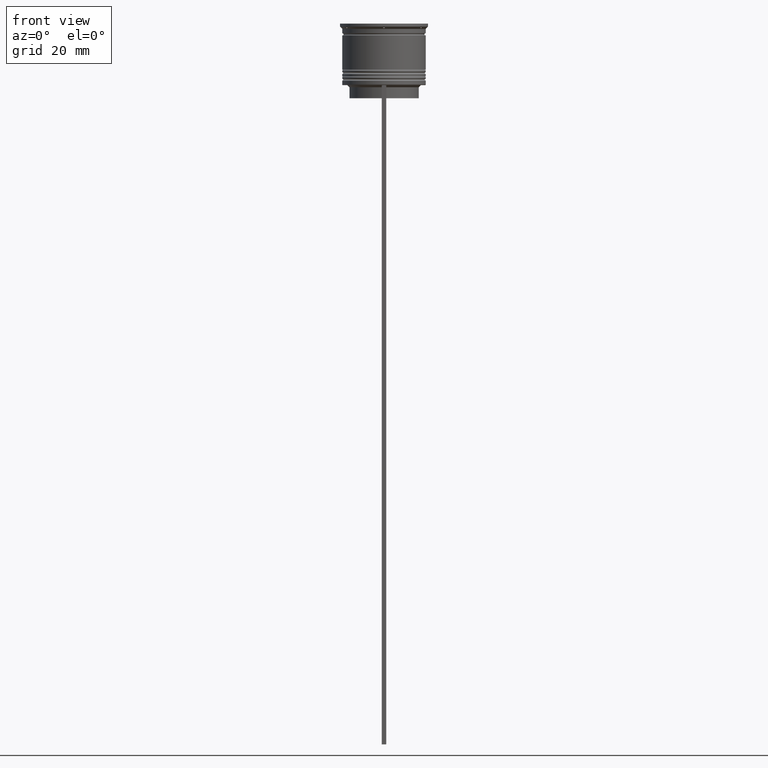
[diagram: clean part render]
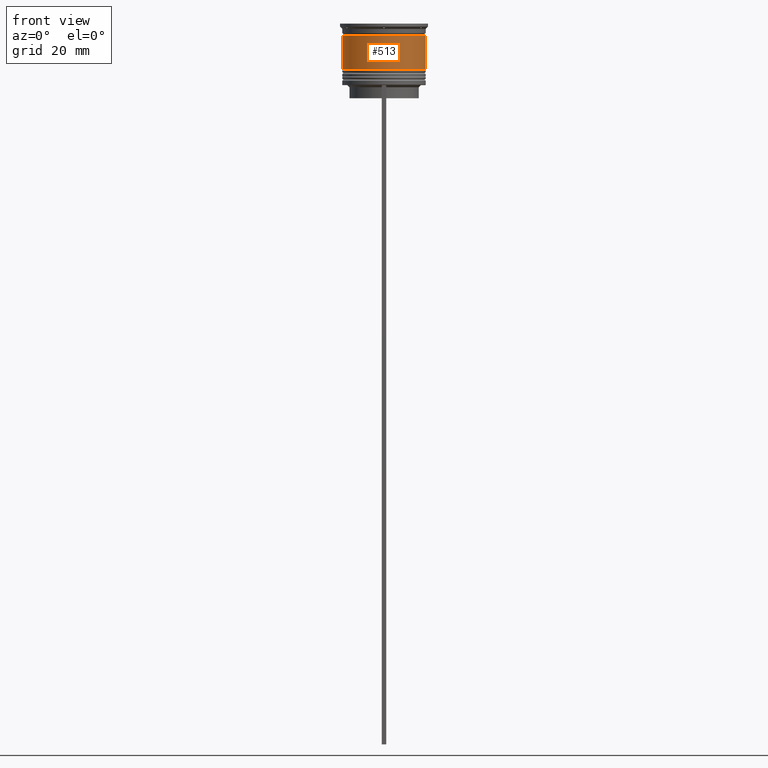
[diagram: same view with one face highlighted and labeled with its STEP entity id]
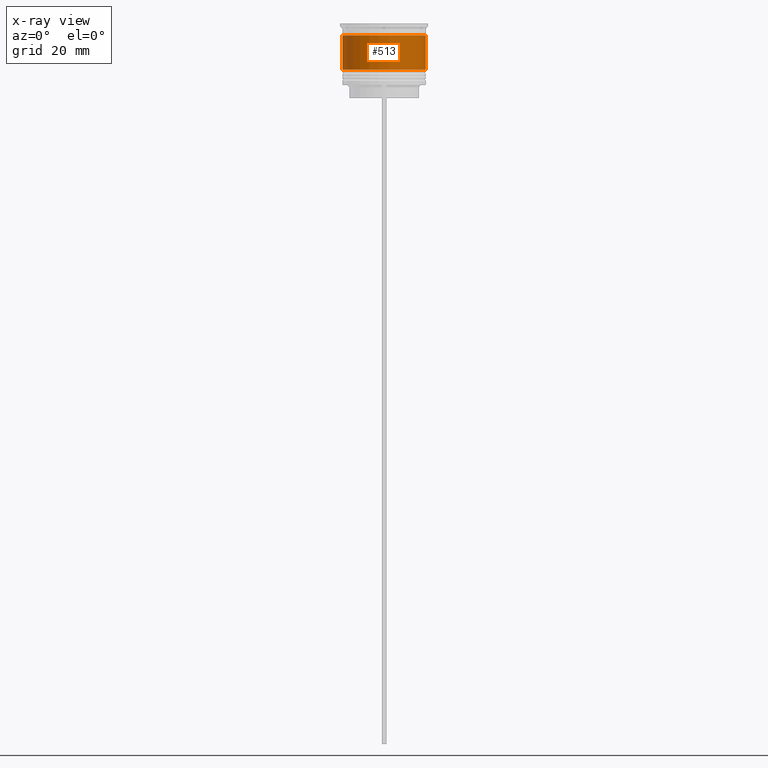
[diagram: x-ray of the same camera — body ghosted, the highlighted face saturated]
A machine part, front view. The second image highlights one B-rep face of the part: STEP entity #513.
The next image is the same camera in x-ray: the body ghosted, the highlighted face saturated — about 0% of this face is hidden behind the body in this view.
In plain terms, the highlighted cylindrical surface (partial cylindrical patch) has radius 9.5 mm, axis along (-0, -0, 1).
Its self-contained STEP definition (entity closure, byte-faithful):
#2 = CIRCLE ( 'NONE', #1919, 9.499999999999998224 ) ;
#32 = DIRECTION ( 'NONE',  ( -0.000000000000000000, -0.000000000000000000, 1.000000000000000000 ) ) ;
#60 = ORIENTED_EDGE ( 'NONE', *, *, #1014, .F. ) ;
#101 = ORIENTED_EDGE ( 'NONE', *, *, #908, .F. ) ;
#141 = VERTEX_POINT ( 'NONE', #2363 ) ;
#287 = LINE ( 'NONE', #1124, #1227 ) ;
#361 = DIRECTION ( 'NONE',  ( -0.000000000000000000, -0.000000000000000000, 1.000000000000000000 ) ) ;
#398 = EDGE_CURVE ( 'NONE', #2554, #2098, #1000, .T. ) ;
#513 = ADVANCED_FACE ( 'NONE', ( #2122 ), #1150, .T. ) ;
#603 = AXIS2_PLACEMENT_3D ( 'NONE', #1027, #361, #837 ) ;
#659 = VECTOR ( 'NONE', #707, 1000.000000000000000 ) ;
#707 = DIRECTION ( 'NONE',  ( -0.000000000000000000, -0.000000000000000000, 1.000000000000000000 ) ) ;
#837 = DIRECTION ( 'NONE',  ( 1.000000000000000000, 0.000000000000000000, 0.000000000000000000 ) ) ;
#908 = EDGE_CURVE ( 'NONE', #1214, #141, #2, .T. ) ;
#1000 = CIRCLE ( 'NONE', #603, 9.500000000000001776 ) ;
#1014 = EDGE_CURVE ( 'NONE', #2554, #1214, #2523, .T. ) ;
#1027 = CARTESIAN_POINT ( 'NONE',  ( 0.000000000000000000, 0.000000000000000000, -10.50000000000000000 ) ) ;
#1124 = CARTESIAN_POINT ( 'NONE',  ( 9.500000000000000000, 0.000000000000000000, 0.000000000000000000 ) ) ;
#1150 = CYLINDRICAL_SURFACE ( 'NONE', #2420, 9.500000000000000000 ) ;
#1214 = VERTEX_POINT ( 'NONE', #2264 ) ;
#1227 = VECTOR ( 'NONE', #2405, 1000.000000000000000 ) ;
#1313 = CARTESIAN_POINT ( 'NONE',  ( 9.500000000000001776, 0.000000000000000000, -10.50000000000000000 ) ) ;
#1472 = CARTESIAN_POINT ( 'NONE',  ( 0.000000000000000000, 0.000000000000000000, 0.000000000000000000 ) ) ;
#1483 = ORIENTED_EDGE ( 'NONE', *, *, #2163, .T. ) ;
#1509 = DIRECTION ( 'NONE',  ( -0.000000000000000000, -0.000000000000000000, 1.000000000000000000 ) ) ;
#1519 = CARTESIAN_POINT ( 'NONE',  ( -9.500000000000000000, 1.163414459189985485E-15, 0.000000000000000000 ) ) ;
#1919 = AXIS2_PLACEMENT_3D ( 'NONE', #1961, #1509, #2366 ) ;
#1961 = CARTESIAN_POINT ( 'NONE',  ( 0.000000000000000000, 0.000000000000000000, -2.700000000000001066 ) ) ;
#2040 = EDGE_LOOP ( 'NONE', ( #60, #2179, #1483, #101 ) ) ;
#2098 = VERTEX_POINT ( 'NONE', #1313 ) ;
#2122 = FACE_OUTER_BOUND ( 'NONE', #2040, .T. ) ;
#2163 = EDGE_CURVE ( 'NONE', #2098, #141, #287, .T. ) ;
#2179 = ORIENTED_EDGE ( 'NONE', *, *, #398, .T. ) ;
#2264 = CARTESIAN_POINT ( 'NONE',  ( -9.499999999999998224, 1.163414459189985485E-15, -2.700000000000001066 ) ) ;
#2284 = DIRECTION ( 'NONE',  ( 1.000000000000000000, 0.000000000000000000, 0.000000000000000000 ) ) ;
#2363 = CARTESIAN_POINT ( 'NONE',  ( 9.499999999999998224, 0.000000000000000000, -2.700000000000001066 ) ) ;
#2366 = DIRECTION ( 'NONE',  ( 1.000000000000000000, 0.000000000000000000, 0.000000000000000000 ) ) ;
#2373 = CARTESIAN_POINT ( 'NONE',  ( -9.500000000000001776, 1.163414459189985682E-15, -10.50000000000000000 ) ) ;
#2405 = DIRECTION ( 'NONE',  ( -0.000000000000000000, -0.000000000000000000, 1.000000000000000000 ) ) ;
#2420 = AXIS2_PLACEMENT_3D ( 'NONE', #1472, #32, #2284 ) ;
#2523 = LINE ( 'NONE', #1519, #659 ) ;
#2554 = VERTEX_POINT ( 'NONE', #2373 ) ;